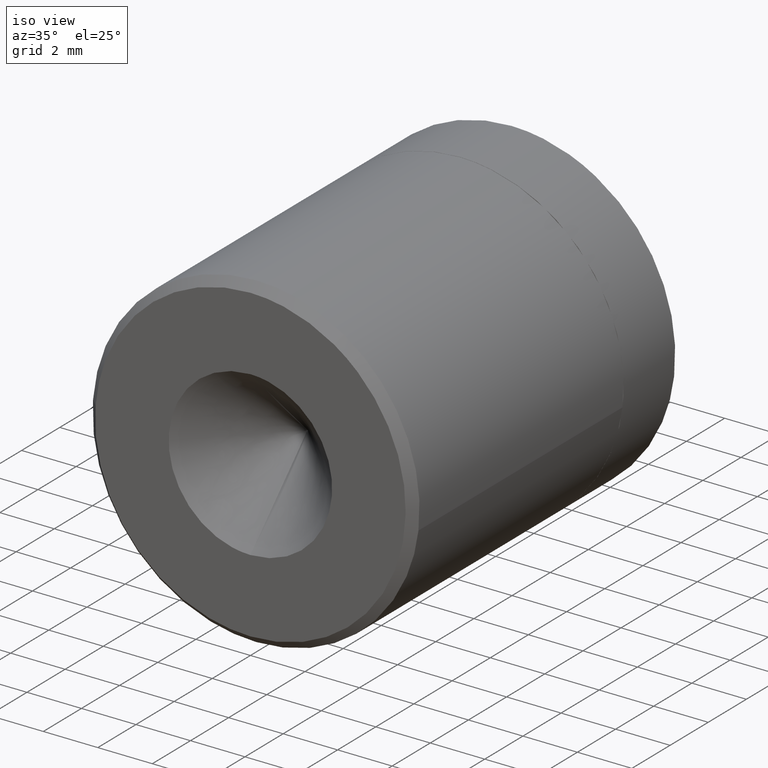
[diagram: clean part render]
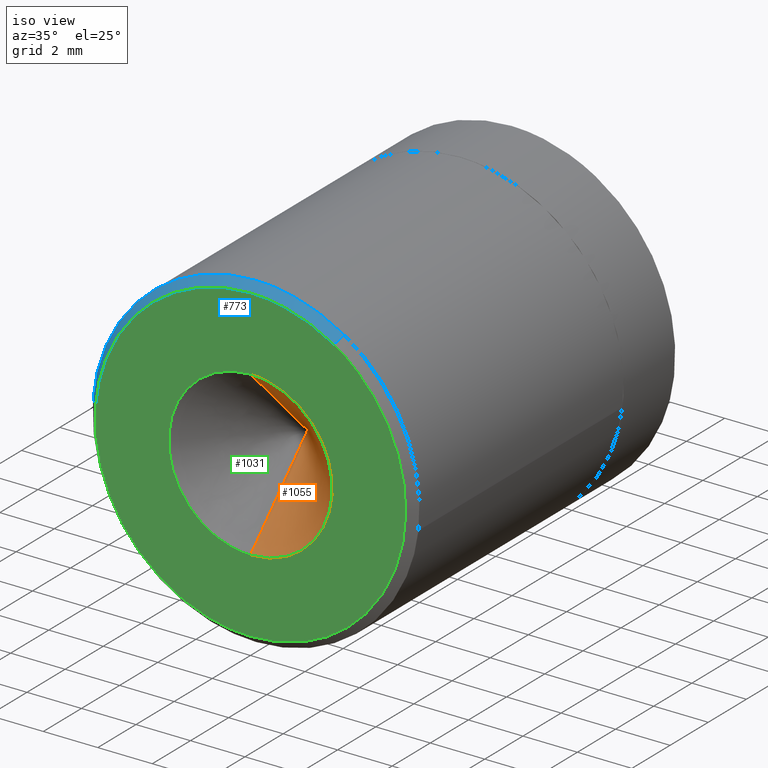
[diagram: same view with three faces highlighted in distinct colors, each labeled with its STEP entity id]
A machine part, iso view with three faces highlighted in distinct colors.
Their STEP definitions:

[orange] entity #1055 — the highlighted face is a freeform B-spline surface patch.
#920=CARTESIAN_POINT('',(0.0,2.891206E-016,2.999999999999998));
#921=VERTEX_POINT('',#920);
#922=CARTESIAN_POINT('',(0.0,2.891206E-016,-3.000000000000003));
#923=VERTEX_POINT('',#922);
#939=CARTESIAN_POINT('',(0.0,3.0,-2.449215E-015));
#940=VERTEX_POINT('',#939);
#941=CARTESIAN_POINT('',(0.0,3.0,-2.449215E-015));
#942=CARTESIAN_POINT('',(0.0,2.891206E-016,-3.000000000000003));
#943=QUASI_UNIFORM_CURVE('',1,(#941,#942),.UNSPECIFIED.,.F.,.U.);
#944=EDGE_CURVE('',#940,#923,#943,.T.);
#946=CARTESIAN_POINT('',(0.0,3.0,-2.449215E-015));
#947=CARTESIAN_POINT('',(0.0,2.891206E-016,2.999999999999998));
#948=QUASI_UNIFORM_CURVE('',1,(#946,#947),.UNSPECIFIED.,.F.,.U.);
#949=EDGE_CURVE('',#940,#921,#948,.T.);
#1013=CARTESIAN_POINT('',(0.0,0.0,-3.000000000000003));
#1014=CARTESIAN_POINT('',(3.0,0.0,-3.000000000000003));
#1015=CARTESIAN_POINT('',(3.0,0.0,-2.449215E-015));
#1016=CARTESIAN_POINT('',(3.0,0.0,2.999999999999998));
#1017=CARTESIAN_POINT('',(0.0,0.0,2.999999999999997));
#1025=(BOUNDED_CURVE()B_SPLINE_CURVE(2,(#1013,#1014,#1015,#1016,#1017),.UNSPECIFIED.,.F.,.U.)B_SPLINE_CURVE_WITH_KNOTS((3,2,3),(0.0,0.500000000000000,1.0),.UNSPECIFIED.)CURVE()GEOMETRIC_REPRESENTATION_ITEM()RATIONAL_B_SPLINE_CURVE((1.0,0.707106781186548,1.0,0.707106781186548,1.0))REPRESENTATION_ITEM(''));
#1026=EDGE_CURVE('',#923,#921,#1025,.T.);
#1032=CARTESIAN_POINT('',(0.0,3.000000000000002,-2.449215E-015));
#1033=CARTESIAN_POINT('',(-0.080543197824792,-0.076875000000000,3.075820631784166));
#1034=CARTESIAN_POINT('',(0.0,3.000000000000003,-2.449215E-015));
#1035=CARTESIAN_POINT('',(3.160695452878498,-0.076875000000000,3.160695452878505));
#1036=CARTESIAN_POINT('',(0.0,3.000000000000002,-2.449215E-015));
#1037=CARTESIAN_POINT('',(3.075820631784169,-0.076875000000000,-0.080543197824785));
#1038=CARTESIAN_POINT('',(0.0,3.000000000000003,-2.449215E-015));
#1039=CARTESIAN_POINT('',(2.990945810689841,-0.076875000000000,-3.321781848528075));
#1040=CARTESIAN_POINT('',(0.0,3.000000000000002,-2.449215E-015));
#1041=CARTESIAN_POINT('',(-0.241408830167608,-0.076875000000000,-3.067390021230122));
#1049=(BOUNDED_SURFACE()B_SPLINE_SURFACE(1,2,((#1032,#1034,#1036,#1038,#1040),(#1033,#1035,#1037,#1039,#1041)),.UNSPECIFIED.,.F.,.F.,.U.)B_SPLINE_SURFACE_WITH_KNOTS((2,2),(3,2,3),(0.0,1.0),(0.0,1.0,2.0),.UNSPECIFIED.)GEOMETRIC_REPRESENTATION_ITEM()RATIONAL_B_SPLINE_SURFACE(((1.0,0.688354575693754,1.0,0.688354575693754,1.0),(1.0,0.688354575693754,1.0,0.688354575693754,1.0)))REPRESENTATION_ITEM('')SURFACE());
#1050=ORIENTED_EDGE('',*,*,#944,.T.);
#1051=ORIENTED_EDGE('',*,*,#1026,.T.);
#1052=ORIENTED_EDGE('',*,*,#949,.F.);
#1053=EDGE_LOOP('',(#1050,#1051,#1052));
#1054=FACE_OUTER_BOUND('',#1053,.T.);
#1055=ADVANCED_FACE('',(#1054),#1049,.F.);

[blue] entity #773 — the highlighted face is a freeform B-spline surface patch.
#582=CARTESIAN_POINT('',(3.227105836379637,0.299995000000160,5.058241979266022));
#583=VERTEX_POINT('',#582);
#599=CARTESIAN_POINT('',(3.065750060495583,8.703212E-014,4.805329121566315));
#600=VERTEX_POINT('',#599);
#601=CARTESIAN_POINT('',(3.065750060495583,8.703212E-014,4.805329121566315));
#602=CARTESIAN_POINT('',(3.227105836379637,0.299995000000160,5.058241979266022));
#603=QUASI_UNIFORM_CURVE('',1,(#601,#602),.UNSPECIFIED.,.F.,.U.);
#604=EDGE_CURVE('',#600,#583,#603,.T.);
#623=CARTESIAN_POINT('',(-5.682429799196175,3.158671E-014,0.447216924108055));
#624=VERTEX_POINT('',#623);
#640=CARTESIAN_POINT('',(-5.981505996233572,0.299995000000459,0.470754731287946));
#641=VERTEX_POINT('',#640);
#642=CARTESIAN_POINT('',(-5.682429799196175,3.158671E-014,0.447216924108055));
#643=CARTESIAN_POINT('',(-5.981505996233572,0.299995000000459,0.470754731287946));
#644=QUASI_UNIFORM_CURVE('',1,(#642,#643),.UNSPECIFIED.,.F.,.U.);
#645=EDGE_CURVE('',#624,#641,#644,.T.);
#695=CARTESIAN_POINT('',(-5.674952894270231,-0.007499875000003,0.446628478928377));
#696=CARTESIAN_POINT('',(-5.228324415341852,-0.007499875000003,6.121581373198607));
#697=CARTESIAN_POINT('',(0.446628478928379,-0.007499875000003,5.674952894270228));
#698=CARTESIAN_POINT('',(1.863523385966981,-0.007499875000003,5.563440846695180));
#699=CARTESIAN_POINT('',(3.061716166097038,-0.007499875000003,4.799006300124637));
#700=CARTESIAN_POINT('',(-5.989169823782511,0.307682371875112,0.471357887594184));
#701=CARTESIAN_POINT('',(-5.517811936188325,0.307682371875112,6.460527711376695));
#702=CARTESIAN_POINT('',(0.471357887594187,0.307682371875112,5.989169823782508));
#703=CARTESIAN_POINT('',(1.966704964267671,0.307682371875112,5.871483456553101));
#704=CARTESIAN_POINT('',(3.231240578135852,0.307682371875112,5.064722871245033));
#712=(BOUNDED_SURFACE()B_SPLINE_SURFACE(2,1,((#695,#700),(#696,#701),(#697,#702),(#698,#703),(#699,#704)),.UNSPECIFIED.,.F.,.F.,.U.)B_SPLINE_SURFACE_WITH_KNOTS((3,2,3),(2,2),(0.0,9.953865920162635,13.139103014614680),(0.0,0.445739465596589),.UNSPECIFIED.)GEOMETRIC_REPRESENTATION_ITEM()RATIONAL_B_SPLINE_SURFACE(((1.0,1.0),(0.707106781186548,0.707106781186548),(1.0,1.0),(0.906274169979695,0.906274169979695),(0.872532871172386,0.872532871172386)))REPRESENTATION_ITEM('')SURFACE());
#713=CARTESIAN_POINT('',(0.0,0.299995000000109,6.000001999999998));
#714=VERTEX_POINT('',#713);
#715=CARTESIAN_POINT('',(3.227105836379637,0.299995000000160,5.058241979266022));
#716=CARTESIAN_POINT('',(1.750968915932734,0.299995000000110,6.000001999999998));
#717=CARTESIAN_POINT('',(0.0,0.299995000000109,6.000001999999998));
#725=(BOUNDED_CURVE()B_SPLINE_CURVE(2,(#715,#716,#717),.UNSPECIFIED.,.F.,.U.)B_SPLINE_CURVE_WITH_KNOTS((3,3),(0.407950112627522,0.500000000000000),.UNSPECIFIED.)CURVE()GEOMETRIC_REPRESENTATION_ITEM()RATIONAL_B_SPLINE_CURVE((0.863729296954906,0.892156848784236,1.0))REPRESENTATION_ITEM(''));
#726=EDGE_CURVE('',#583,#714,#725,.T.);
#727=ORIENTED_EDGE('',*,*,#726,.T.);
#728=CARTESIAN_POINT('',(0.0,0.299995000000109,6.000001999999998));
#729=CARTESIAN_POINT('',(-5.546344798725301,0.299995000000110,6.000001999999998));
#730=CARTESIAN_POINT('',(-5.981505996233572,0.299995000000459,0.470754731287946));
#738=(BOUNDED_CURVE()B_SPLINE_CURVE(2,(#728,#729,#730),.UNSPECIFIED.,.F.,.U.)B_SPLINE_CURVE_WITH_KNOTS((3,3),(0.500000000000000,0.736331300632615),.UNSPECIFIED.)CURVE()GEOMETRIC_REPRESENTATION_ITEM()RATIONAL_B_SPLINE_CURVE((1.0,0.723120658605375,0.969723356171499))REPRESENTATION_ITEM(''));
#739=EDGE_CURVE('',#714,#641,#738,.T.);
#740=ORIENTED_EDGE('',*,*,#739,.T.);
#741=ORIENTED_EDGE('',*,*,#645,.F.);
#742=CARTESIAN_POINT('',(0.0,0.0,5.700000999999997));
#743=VERTEX_POINT('',#742);
#744=CARTESIAN_POINT('',(0.0,0.0,5.700000999999997));
#745=CARTESIAN_POINT('',(-5.269026726841836,0.0,5.700000999999998));
#746=CARTESIAN_POINT('',(-5.682429799196175,3.158671E-014,0.447216924108055));
#754=(BOUNDED_CURVE()B_SPLINE_CURVE(2,(#744,#745,#746),.UNSPECIFIED.,.F.,.U.)B_SPLINE_CURVE_WITH_KNOTS((3,3),(0.500000000000000,0.736331300632753),.UNSPECIFIED.)CURVE()GEOMETRIC_REPRESENTATION_ITEM()RATIONAL_B_SPLINE_CURVE((1.0,0.723120658605213,0.969723356171786))REPRESENTATION_ITEM(''));
#755=EDGE_CURVE('',#743,#624,#754,.T.);
#756=ORIENTED_EDGE('',*,*,#755,.F.);
#757=CARTESIAN_POINT('',(3.065750060495584,8.703212E-014,4.805329121566315));
#758=CARTESIAN_POINT('',(1.663420207491645,0.0,5.700000999999997));
#759=CARTESIAN_POINT('',(0.0,0.0,5.700000999999997));
#767=(BOUNDED_CURVE()B_SPLINE_CURVE(2,(#757,#758,#759),.UNSPECIFIED.,.F.,.U.)B_SPLINE_CURVE_WITH_KNOTS((3,3),(0.407950112627482,0.500000000000000),.UNSPECIFIED.)CURVE()GEOMETRIC_REPRESENTATION_ITEM()RATIONAL_B_SPLINE_CURVE((0.863729296954882,0.892156848784190,1.0))REPRESENTATION_ITEM(''));
#768=EDGE_CURVE('',#600,#743,#767,.T.);
#769=ORIENTED_EDGE('',*,*,#768,.F.);
#770=ORIENTED_EDGE('',*,*,#604,.T.);
#771=EDGE_LOOP('',(#727,#740,#741,#756,#769,#770));
#772=FACE_OUTER_BOUND('',#771,.T.);
#773=ADVANCED_FACE('',(#772),#712,.T.);

[green] entity #1031 — the highlighted face is a freeform B-spline surface patch.
#599=CARTESIAN_POINT('',(3.065750060495583,8.703212E-014,4.805329121566315));
#600=VERTEX_POINT('',#599);
#606=CARTESIAN_POINT('',(0.0,0.0,-5.700001000000002));
#607=VERTEX_POINT('',#606);
#608=CARTESIAN_POINT('',(0.0,0.0,-5.700001000000002));
#609=CARTESIAN_POINT('',(5.700000999999999,0.0,-5.700001000000002));
#610=CARTESIAN_POINT('',(5.700000999999999,0.0,-2.449215E-015));
#611=CARTESIAN_POINT('',(5.700001000000000,0.0,3.124704387475379));
#612=CARTESIAN_POINT('',(3.065750060495584,8.703212E-014,4.805329121566315));
#620=(BOUNDED_CURVE()B_SPLINE_CURVE(2,(#608,#609,#610,#611,#612),.UNSPECIFIED.,.F.,.U.)B_SPLINE_CURVE_WITH_KNOTS((3,2,3),(0.0,0.250000000000000,0.407950112627482),.UNSPECIFIED.)CURVE()GEOMETRIC_REPRESENTATION_ITEM()RATIONAL_B_SPLINE_CURVE((1.0,0.707106781186548,1.0,0.814949932402358,0.863729296954882))REPRESENTATION_ITEM(''));
#621=EDGE_CURVE('',#607,#600,#620,.T.);
#623=CARTESIAN_POINT('',(-5.682429799196175,3.158671E-014,0.447216924108055));
#624=VERTEX_POINT('',#623);
#625=CARTESIAN_POINT('',(-5.682429799196175,3.158671E-014,0.447216924108055));
#626=CARTESIAN_POINT('',(-5.700000999999999,0.0,0.223953649234064));
#627=CARTESIAN_POINT('',(-5.700000999999999,0.0,-2.449215E-015));
#628=CARTESIAN_POINT('',(-5.700000999999999,0.0,-5.700001000000002));
#629=CARTESIAN_POINT('',(0.0,0.0,-5.700001000000002));
#637=(BOUNDED_CURVE()B_SPLINE_CURVE(2,(#625,#626,#627,#628,#629),.UNSPECIFIED.,.F.,.U.)B_SPLINE_CURVE_WITH_KNOTS((3,2,3),(0.736331300632752,0.750000000000000,1.0),.UNSPECIFIED.)CURVE()GEOMETRIC_REPRESENTATION_ITEM()RATIONAL_B_SPLINE_CURVE((0.969723356171785,0.983986122581334,1.0,0.707106781186548,1.0))REPRESENTATION_ITEM(''));
#638=EDGE_CURVE('',#624,#607,#637,.T.);
#742=CARTESIAN_POINT('',(0.0,0.0,5.700000999999997));
#743=VERTEX_POINT('',#742);
#744=CARTESIAN_POINT('',(0.0,0.0,5.700000999999997));
#745=CARTESIAN_POINT('',(-5.269026726841836,0.0,5.700000999999998));
#746=CARTESIAN_POINT('',(-5.682429799196175,3.158671E-014,0.447216924108055));
#754=(BOUNDED_CURVE()B_SPLINE_CURVE(2,(#744,#745,#746),.UNSPECIFIED.,.F.,.U.)B_SPLINE_CURVE_WITH_KNOTS((3,3),(0.500000000000000,0.736331300632753),.UNSPECIFIED.)CURVE()GEOMETRIC_REPRESENTATION_ITEM()RATIONAL_B_SPLINE_CURVE((1.0,0.723120658605213,0.969723356171786))REPRESENTATION_ITEM(''));
#755=EDGE_CURVE('',#743,#624,#754,.T.);
#757=CARTESIAN_POINT('',(3.065750060495584,8.703212E-014,4.805329121566315));
#758=CARTESIAN_POINT('',(1.663420207491645,0.0,5.700000999999997));
#759=CARTESIAN_POINT('',(0.0,0.0,5.700000999999997));
#767=(BOUNDED_CURVE()B_SPLINE_CURVE(2,(#757,#758,#759),.UNSPECIFIED.,.F.,.U.)B_SPLINE_CURVE_WITH_KNOTS((3,3),(0.407950112627482,0.500000000000000),.UNSPECIFIED.)CURVE()GEOMETRIC_REPRESENTATION_ITEM()RATIONAL_B_SPLINE_CURVE((0.863729296954882,0.892156848784190,1.0))REPRESENTATION_ITEM(''));
#768=EDGE_CURVE('',#600,#743,#767,.T.);
#920=CARTESIAN_POINT('',(0.0,2.891206E-016,2.999999999999998));
#921=VERTEX_POINT('',#920);
#922=CARTESIAN_POINT('',(0.0,2.891206E-016,-3.000000000000003));
#923=VERTEX_POINT('',#922);
#924=CARTESIAN_POINT('',(0.0,0.0,2.999999999999997));
#925=CARTESIAN_POINT('',(-3.0,0.0,2.999999999999998));
#926=CARTESIAN_POINT('',(-3.0,0.0,-2.449215E-015));
#927=CARTESIAN_POINT('',(-3.0,0.0,-3.000000000000003));
#928=CARTESIAN_POINT('',(0.0,0.0,-3.000000000000003));
#936=(BOUNDED_CURVE()B_SPLINE_CURVE(2,(#924,#925,#926,#927,#928),.UNSPECIFIED.,.F.,.U.)B_SPLINE_CURVE_WITH_KNOTS((3,2,3),(0.0,0.500000000000000,1.0),.UNSPECIFIED.)CURVE()GEOMETRIC_REPRESENTATION_ITEM()RATIONAL_B_SPLINE_CURVE((1.0,0.707106781186548,1.0,0.707106781186548,1.0))REPRESENTATION_ITEM(''));
#937=EDGE_CURVE('',#921,#923,#936,.T.);
#1002=CARTESIAN_POINT('',(-6.267669685323708,0.0,6.269430823045640));
#1003=CARTESIAN_POINT('',(-6.267669685323708,0.0,-6.269430517273766));
#1004=CARTESIAN_POINT('',(6.267239464286659,0.0,6.269430823045640));
#1005=CARTESIAN_POINT('',(6.267239464286659,0.0,-6.269430517273766));
#1006=B_SPLINE_SURFACE_WITH_KNOTS('',1,1,((#1002,#1004),(#1003,#1005)),.UNSPECIFIED.,.F.,.F.,.U.,(2,2),(2,2),(0.0,12.538861340319411),(0.0,12.534909149610369),.UNSPECIFIED.);
#1007=ORIENTED_EDGE('',*,*,#621,.T.);
#1008=ORIENTED_EDGE('',*,*,#768,.T.);
#1009=ORIENTED_EDGE('',*,*,#755,.T.);
#1010=ORIENTED_EDGE('',*,*,#638,.T.);
#1011=EDGE_LOOP('',(#1007,#1008,#1009,#1010));
#1012=FACE_OUTER_BOUND('',#1011,.T.);
#1013=CARTESIAN_POINT('',(0.0,0.0,-3.000000000000003));
#1014=CARTESIAN_POINT('',(3.0,0.0,-3.000000000000003));
#1015=CARTESIAN_POINT('',(3.0,0.0,-2.449215E-015));
#1016=CARTESIAN_POINT('',(3.0,0.0,2.999999999999998));
#1017=CARTESIAN_POINT('',(0.0,0.0,2.999999999999997));
#1025=(BOUNDED_CURVE()B_SPLINE_CURVE(2,(#1013,#1014,#1015,#1016,#1017),.UNSPECIFIED.,.F.,.U.)B_SPLINE_CURVE_WITH_KNOTS((3,2,3),(0.0,0.500000000000000,1.0),.UNSPECIFIED.)CURVE()GEOMETRIC_REPRESENTATION_ITEM()RATIONAL_B_SPLINE_CURVE((1.0,0.707106781186548,1.0,0.707106781186548,1.0))REPRESENTATION_ITEM(''));
#1026=EDGE_CURVE('',#923,#921,#1025,.T.);
#1027=ORIENTED_EDGE('',*,*,#1026,.F.);
#1028=ORIENTED_EDGE('',*,*,#937,.F.);
#1029=EDGE_LOOP('',(#1027,#1028));
#1030=FACE_BOUND('',#1029,.T.);
#1031=ADVANCED_FACE('',(#1012,#1030),#1006,.T.);